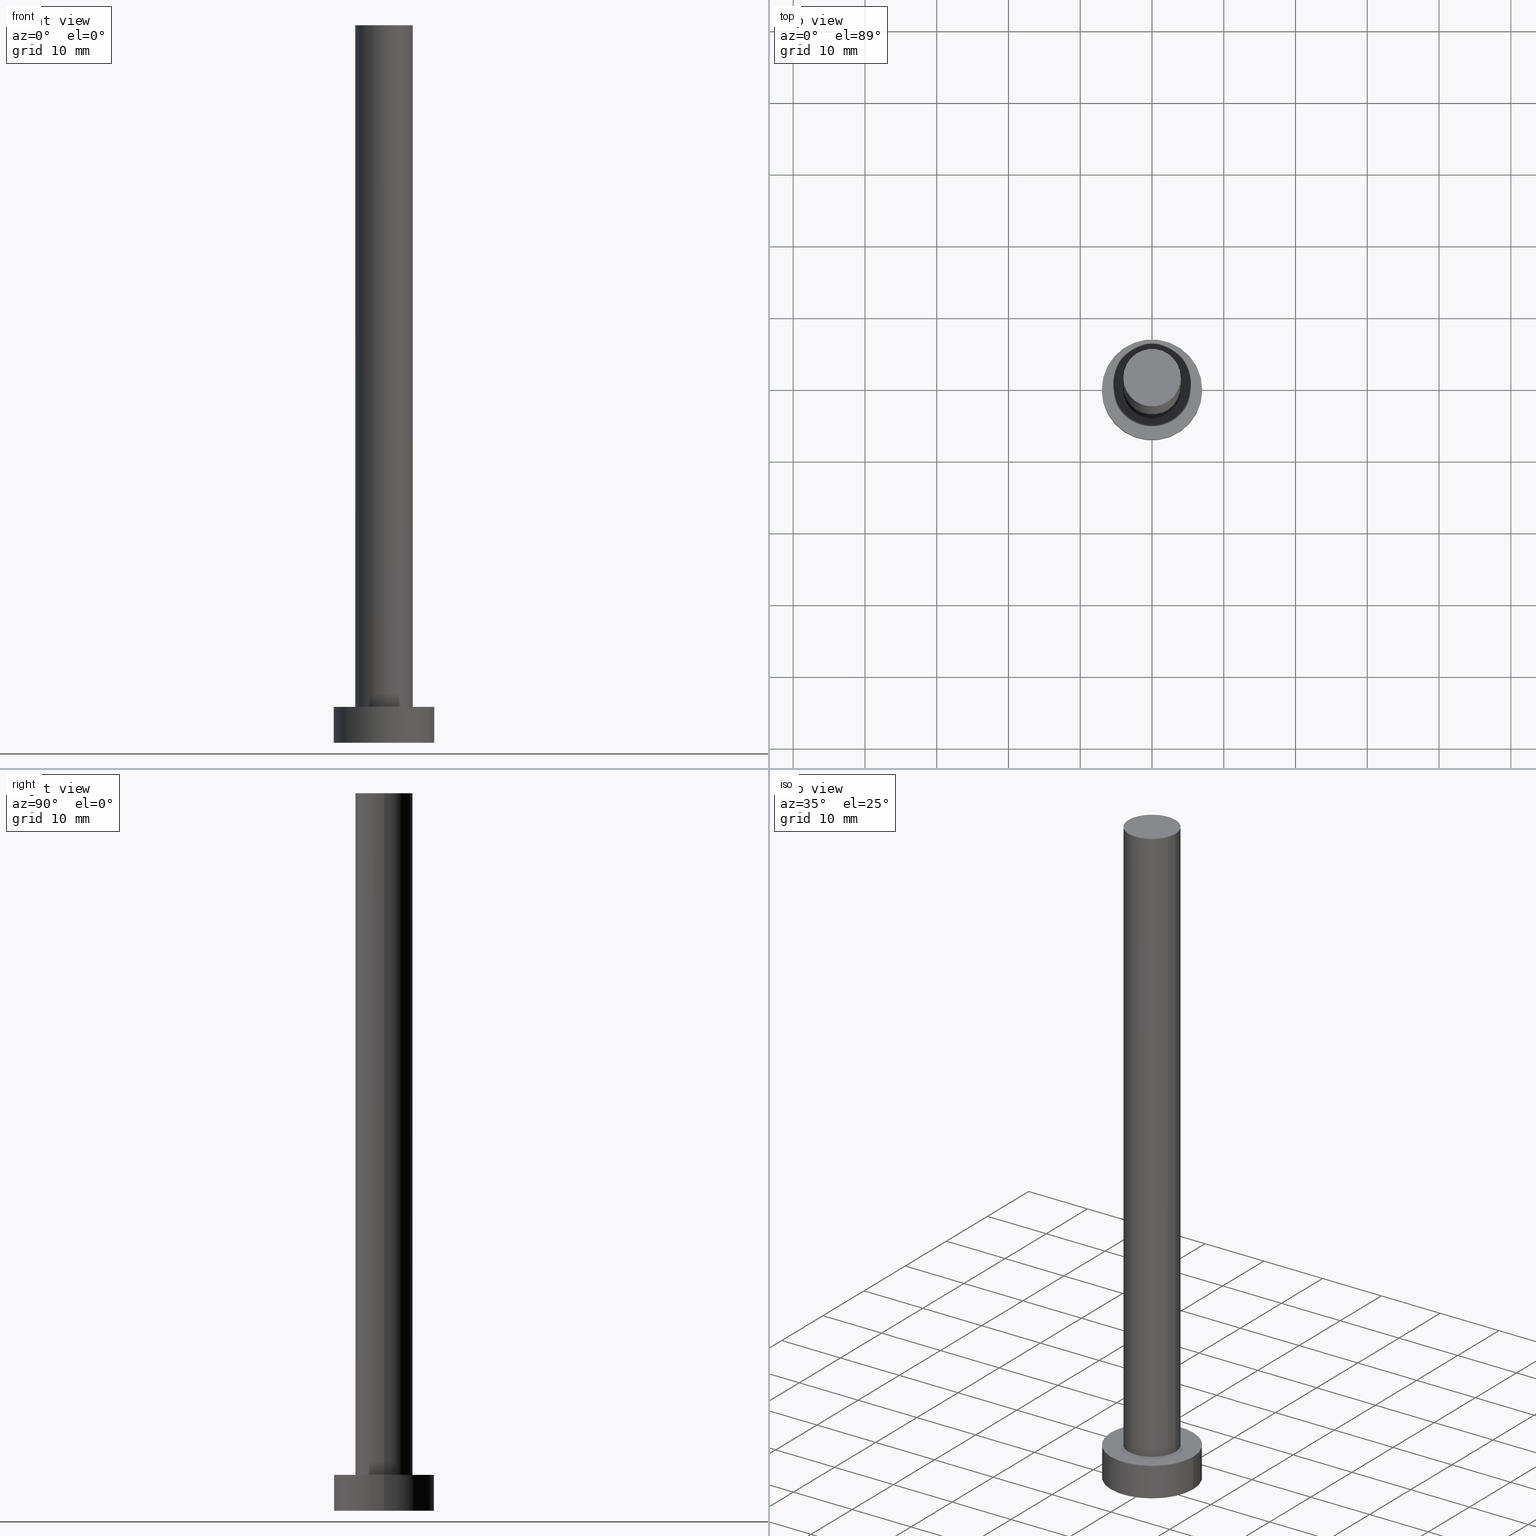
[diagram: canonical four-view strip — front | top / right | iso, engineering-drawing reading convention]
A machine part, canonical four-view strip (front | top / right | iso — engineering-drawing reading convention). The complete STEP part file that produces these views, byte-faithful:
ISO-10303-21;
HEADER;
FILE_DESCRIPTION (( 'STEP AP203' ),
    '1' );
FILE_NAME ('d6dd.STEP',
    '2023-02-12T11:55:29',
    ( '' ),
    ( '' ),
    'SwSTEP 2.0',
    'SolidWorks 2019',
    '' );
FILE_SCHEMA (( 'CONFIG_CONTROL_DESIGN' ));
ENDSEC;

DATA;
#1 = EDGE_LOOP ( 'NONE', ( #211, #94, #47, #19 ) ) ;
#2 = DIRECTION ( 'NONE',  ( -0.000000000000000000, -0.000000000000000000, -1.000000000000000000 ) ) ;
#3 = DATE_TIME_ROLE ( 'classification_date' ) ;
#4 = PERSON_AND_ORGANIZATION_ROLE ( 'design_supplier' ) ;
#5 = PERSON_AND_ORGANIZATION ( #181, #84 ) ;
#6 = AXIS2_PLACEMENT_3D ( 'NONE', #46, #82, #166 ) ;
#7 = AXIS2_PLACEMENT_3D ( 'NONE', #80, #161, #242 ) ;
#8 = FACE_OUTER_BOUND ( 'NONE', #1, .T. ) ;
#9 = AXIS2_PLACEMENT_3D ( 'NONE', #120, #201, #250 ) ;
#10 = CC_DESIGN_APPROVAL ( #217, ( #118 ) ) ;
#11 = PLANE ( 'NONE',  #225 ) ;
#12 = CYLINDRICAL_SURFACE ( 'NONE', #6, 7.000000000000000000 ) ;
#13 = CYLINDRICAL_SURFACE ( 'NONE', #208, 4.000000000000000000 ) ;
#14 = ADVANCED_FACE ( 'NONE', ( #86 ), #214, .T. ) ;
#15 = APPROVAL_PERSON_ORGANIZATION ( #49, #87, #133 ) ;
#16 = VERTEX_POINT ( 'NONE', #173 ) ;
#17 = DIRECTION ( 'NONE',  ( 0.000000000000000000, 0.000000000000000000, 1.000000000000000000 ) ) ;
#18 = AXIS2_PLACEMENT_3D ( 'NONE', #231, #212, #252 ) ;
#19 = ORIENTED_EDGE ( 'NONE', *, *, #234, .F. ) ;
#20 = SHAPE_DEFINITION_REPRESENTATION ( #74, #42 ) ;
#21 = CARTESIAN_POINT ( 'NONE',  ( 0.000000000000000000, 0.000000000000000000, 5.000000000000000000 ) ) ;
#22 = CALENDAR_DATE ( 2023, 12, 2 ) ;
#23 = VECTOR ( 'NONE', #194, 1000.000000000000000 ) ;
#24 = CIRCLE ( 'NONE', #157, 7.000000000000000000 ) ;
#25 = DIRECTION ( 'NONE',  ( 1.000000000000000000, 0.000000000000000000, 0.000000000000000000 ) ) ;
#26 = CC_DESIGN_PERSON_AND_ORGANIZATION_ASSIGNMENT ( #5, #60, ( #118 ) ) ;
#27 = DIRECTION ( 'NONE',  ( -1.000000000000000000, 0.000000000000000000, 0.000000000000000000 ) ) ;
#28 = ADVANCED_FACE ( 'NONE', ( #255 ), #238, .T. ) ;
#29 = APPROVAL_ROLE ( '' ) ;
#30 = PLANE ( 'NONE',  #116 ) ;
#31 = DIRECTION ( 'NONE',  ( 0.000000000000000000, 0.000000000000000000, 1.000000000000000000 ) ) ;
#32 = DATE_TIME_ROLE ( 'creation_date' ) ;
#33 = ORIENTED_EDGE ( 'NONE', *, *, #197, .F. ) ;
#34 = CC_DESIGN_PERSON_AND_ORGANIZATION_ASSIGNMENT ( #178, #183, ( #40 ) ) ;
#35 = CIRCLE ( 'NONE', #182, 4.000000000000000000 ) ;
#36 = DIRECTION ( 'NONE',  ( 1.000000000000000000, 0.000000000000000000, 0.000000000000000000 ) ) ;
#37 = ORIENTED_EDGE ( 'NONE', *, *, #130, .F. ) ;
#38 = EDGE_CURVE ( 'NONE', #16, #154, #151, .T. ) ;
#39 = PERSON_AND_ORGANIZATION ( #181, #84 ) ;
#40 = PRODUCT_DEFINITION_FORMATION_WITH_SPECIFIED_SOURCE ( 'LIBOVOLN�', '', #245, .NOT_KNOWN. ) ;
#41 = ADVANCED_FACE ( 'NONE', ( #50 ), #30, .T. ) ;
#42 = ADVANCED_BREP_SHAPE_REPRESENTATION ( 'd6dd', ( #137, #18 ), #57 ) ;
#43 = CARTESIAN_POINT ( 'NONE',  ( 7.000000000000000000, 8.572527594031473190E-16, 5.000000000000000000 ) ) ;
#44 = CARTESIAN_POINT ( 'NONE',  ( 0.000000000000000000, 0.000000000000000000, 100.0000000000000000 ) ) ;
#45 = ORIENTED_EDGE ( 'NONE', *, *, #197, .T. ) ;
#46 = CARTESIAN_POINT ( 'NONE',  ( 0.000000000000000000, 0.000000000000000000, 5.000000000000000000 ) ) ;
#47 = ORIENTED_EDGE ( 'NONE', *, *, #85, .T. ) ;
#48 = APPROVAL_STATUS ( 'not_yet_approved' ) ;
#49 = PERSON_AND_ORGANIZATION ( #181, #84 ) ;
#50 = FACE_OUTER_BOUND ( 'NONE', #52, .T. ) ;
#51 = PERSON_AND_ORGANIZATION ( #181, #84 ) ;
#52 = EDGE_LOOP ( 'NONE', ( #132, #174 ) ) ;
#53 = MECHANICAL_CONTEXT ( 'NONE', #243, 'mechanical' ) ;
#54 = ADVANCED_FACE ( 'NONE', ( #142 ), #199, .F. ) ;
#55 = APPLICATION_PROTOCOL_DEFINITION ( 'international standard', 'config_control_design', 1994, #243 ) ;
#56 = DIRECTION ( 'NONE',  ( -0.000000000000000000, -0.000000000000000000, -1.000000000000000000 ) ) ;
#57 =( GEOMETRIC_REPRESENTATION_CONTEXT ( 3 ) GLOBAL_UNCERTAINTY_ASSIGNED_CONTEXT ( ( #230 ) ) GLOBAL_UNIT_ASSIGNED_CONTEXT ( ( #236, #71, #254 ) ) REPRESENTATION_CONTEXT ( 'NONE', 'WORKASPACE' ) );
#58 = APPROVAL_STATUS ( 'not_yet_approved' ) ;
#59 = DATE_AND_TIME ( #22, #200 ) ;
#60 = PERSON_AND_ORGANIZATION_ROLE ( 'classification_officer' ) ;
#61 = CARTESIAN_POINT ( 'NONE',  ( 0.000000000000000000, 0.000000000000000000, 5.000000000000000000 ) ) ;
#62 = APPROVAL_DATE_TIME ( #107, #206 ) ;
#63 = CC_DESIGN_DATE_AND_TIME_ASSIGNMENT ( #163, #3, ( #118 ) ) ;
#64 = VECTOR ( 'NONE', #190, 1000.000000000000000 ) ;
#65 = CARTESIAN_POINT ( 'NONE',  ( 4.000000000000000000, 4.898587196589412829E-16, 100.0000000000000000 ) ) ;
#66 = LOCAL_TIME ( 12, 55, 29.00000000000000000, #111 ) ;
#67 = CARTESIAN_POINT ( 'NONE',  ( 0.000000000000000000, 0.000000000000000000, 5.000000000000000000 ) ) ;
#68 = CARTESIAN_POINT ( 'NONE',  ( 4.000000000000000000, 4.898587196589412829E-16, 100.0000000000000000 ) ) ;
#69 = EDGE_CURVE ( 'NONE', #198, #204, #102, .T. ) ;
#70 = CARTESIAN_POINT ( 'NONE',  ( 4.000000000000000000, 4.898587196589412829E-16, 5.000000000000000000 ) ) ;
#71 =( NAMED_UNIT ( * ) PLANE_ANGLE_UNIT ( ) SI_UNIT ( $, .RADIAN. ) );
#72 = PERSON_AND_ORGANIZATION_ROLE ( 'design_owner' ) ;
#73 = CARTESIAN_POINT ( 'NONE',  ( 0.000000000000000000, 0.000000000000000000, 100.0000000000000000 ) ) ;
#74 = PRODUCT_DEFINITION_SHAPE ( 'NONE', 'NONE',  #140 ) ;
#75 = ORIENTED_EDGE ( 'NONE', *, *, #115, .F. ) ;
#76 = CALENDAR_DATE ( 2023, 12, 2 ) ;
#77 = ORIENTED_EDGE ( 'NONE', *, *, #85, .F. ) ;
#78 = ORIENTED_EDGE ( 'NONE', *, *, #220, .F. ) ;
#79 = CALENDAR_DATE ( 2023, 12, 2 ) ;
#80 = CARTESIAN_POINT ( 'NONE',  ( 0.000000000000000000, 0.000000000000000000, 0.000000000000000000 ) ) ;
#81 = DIRECTION ( 'NONE',  ( 0.000000000000000000, 0.000000000000000000, 1.000000000000000000 ) ) ;
#82 = DIRECTION ( 'NONE',  ( -0.000000000000000000, -0.000000000000000000, -1.000000000000000000 ) ) ;
#83 = EDGE_LOOP ( 'NONE', ( #37, #188, #104, #150 ) ) ;
#84 = ORGANIZATION ( 'NEUR�EN�', 'NEUR�EN�', '' ) ;
#85 = EDGE_CURVE ( 'NONE', #204, #198, #89, .T. ) ;
#86 = FACE_OUTER_BOUND ( 'NONE', #91, .T. ) ;
#87 = APPROVAL ( #48, 'NEUR�EN�' ) ;
#88 = AXIS2_PLACEMENT_3D ( 'NONE', #141, #218, #180 ) ;
#89 = CIRCLE ( 'NONE', #88, 4.000000000000000000 ) ;
#90 = EDGE_LOOP ( 'NONE', ( #172, #222 ) ) ;
#91 = EDGE_LOOP ( 'NONE', ( #253, #229, #168, #126 ) ) ;
#92 = APPLICATION_CONTEXT ( 'configuration controlled 3d designs of mechanical parts and assemblies' ) ;
#93 = CALENDAR_DATE ( 2023, 12, 2 ) ;
#94 = ORIENTED_EDGE ( 'NONE', *, *, #117, .T. ) ;
#95 = VECTOR ( 'NONE', #248, 1000.000000000000000 ) ;
#96 = DIRECTION ( 'NONE',  ( -1.000000000000000000, 0.000000000000000000, 0.000000000000000000 ) ) ;
#97 = DIRECTION ( 'NONE',  ( 0.000000000000000000, 0.000000000000000000, 1.000000000000000000 ) ) ;
#98 = SECURITY_CLASSIFICATION_LEVEL ( 'unclassified' ) ;
#99 = AXIS2_PLACEMENT_3D ( 'NONE', #226, #127, #167 ) ;
#100 = EDGE_CURVE ( 'NONE', #170, #112, #124, .T. ) ;
#101 = DIRECTION ( 'NONE',  ( 0.000000000000000000, 0.000000000000000000, 1.000000000000000000 ) ) ;
#102 = CIRCLE ( 'NONE', #203, 4.000000000000000000 ) ;
#103 = CARTESIAN_POINT ( 'NONE',  ( -7.000000000000000000, 0.000000000000000000, 0.000000000000000000 ) ) ;
#104 = ORIENTED_EDGE ( 'NONE', *, *, #38, .T. ) ;
#105 = CC_DESIGN_DATE_AND_TIME_ASSIGNMENT ( #209, #32, ( #140 ) ) ;
#106 = CARTESIAN_POINT ( 'NONE',  ( 7.000000000000000000, 8.572527594031473190E-16, 5.000000000000000000 ) ) ;
#107 = DATE_AND_TIME ( #128, #66 ) ;
#108 = CARTESIAN_POINT ( 'NONE',  ( 0.000000000000000000, 0.000000000000000000, 100.0000000000000000 ) ) ;
#109 = DATE_AND_TIME ( #76, #239 ) ;
#110 = DIRECTION ( 'NONE',  ( 1.000000000000000000, 0.000000000000000000, -0.000000000000000000 ) ) ;
#111 = COORDINATED_UNIVERSAL_TIME_OFFSET ( 1, 0, .AHEAD. ) ;
#112 = VERTEX_POINT ( 'NONE', #68 ) ;
#113 = CC_DESIGN_APPROVAL ( #206, ( #40 ) ) ;
#114 = CARTESIAN_POINT ( 'NONE',  ( 7.000000000000000000, 8.572527594031473190E-16, 0.000000000000000000 ) ) ;
#115 = EDGE_CURVE ( 'NONE', #122, #16, #24, .T. ) ;
#116 = AXIS2_PLACEMENT_3D ( 'NONE', #108, #31, #110 ) ;
#117 = EDGE_CURVE ( 'NONE', #112, #204, #144, .T. ) ;
#118 = SECURITY_CLASSIFICATION ( '', '', #98 ) ;
#119 = CC_DESIGN_PERSON_AND_ORGANIZATION_ASSIGNMENT ( #138, #4, ( #40 ) ) ;
#120 = CARTESIAN_POINT ( 'NONE',  ( 0.000000000000000000, 0.000000000000000000, 0.000000000000000000 ) ) ;
#121 = CARTESIAN_POINT ( 'NONE',  ( -4.000000000000000000, 0.000000000000000000, 100.0000000000000000 ) ) ;
#122 = VERTEX_POINT ( 'NONE', #106 ) ;
#123 = CARTESIAN_POINT ( 'NONE',  ( 0.000000000000000000, 0.000000000000000000, 5.000000000000000000 ) ) ;
#124 = CIRCLE ( 'NONE', #135, 4.000000000000000000 ) ;
#125 = AXIS2_PLACEMENT_3D ( 'NONE', #123, #202, #25 ) ;
#126 = ORIENTED_EDGE ( 'NONE', *, *, #69, .T. ) ;
#127 = DIRECTION ( 'NONE',  ( 0.000000000000000000, 0.000000000000000000, 1.000000000000000000 ) ) ;
#128 = CALENDAR_DATE ( 2023, 12, 2 ) ;
#129 = APPROVAL_DATE_TIME ( #109, #87 ) ;
#130 = EDGE_CURVE ( 'NONE', #122, #227, #221, .T. ) ;
#131 = CIRCLE ( 'NONE', #99, 7.000000000000000000 ) ;
#132 = ORIENTED_EDGE ( 'NONE', *, *, #100, .T. ) ;
#133 = APPROVAL_ROLE ( '' ) ;
#134 = AXIS2_PLACEMENT_3D ( 'NONE', #21, #152, #96 ) ;
#135 = AXIS2_PLACEMENT_3D ( 'NONE', #184, #81, #247 ) ;
#136 = APPROVAL_PERSON_ORGANIZATION ( #237, #206, #29 ) ;
#137 = MANIFOLD_SOLID_BREP ( 'P�idat vysunut�m3', #232 ) ;
#138 = PERSON_AND_ORGANIZATION ( #181, #84 ) ;
#139 = ORIENTED_EDGE ( 'NONE', *, *, #38, .F. ) ;
#140 = PRODUCT_DEFINITION ( 'NEZN�M�', '', #40, #185 ) ;
#141 = CARTESIAN_POINT ( 'NONE',  ( 0.000000000000000000, 0.000000000000000000, 5.000000000000000000 ) ) ;
#142 = FACE_OUTER_BOUND ( 'NONE', #240, .T. ) ;
#143 = DIRECTION ( 'NONE',  ( 1.000000000000000000, 0.000000000000000000, 0.000000000000000000 ) ) ;
#144 = LINE ( 'NONE', #65, #95 ) ;
#145 = CARTESIAN_POINT ( 'NONE',  ( 0.000000000000000000, 0.000000000000000000, 5.000000000000000000 ) ) ;
#146 = EDGE_LOOP ( 'NONE', ( #193, #77 ) ) ;
#147 = CIRCLE ( 'NONE', #9, 7.000000000000000000 ) ;
#148 = DIRECTION ( 'NONE',  ( 0.000000000000000000, 0.000000000000000000, 1.000000000000000000 ) ) ;
#149 = LOCAL_TIME ( 12, 55, 29.00000000000000000, #153 ) ;
#150 = ORIENTED_EDGE ( 'NONE', *, *, #220, .T. ) ;
#151 = LINE ( 'NONE', #175, #155 ) ;
#152 = DIRECTION ( 'NONE',  ( -0.000000000000000000, -0.000000000000000000, -1.000000000000000000 ) ) ;
#153 = COORDINATED_UNIVERSAL_TIME_OFFSET ( 1, 0, .AHEAD. ) ;
#154 = VERTEX_POINT ( 'NONE', #103 ) ;
#155 = VECTOR ( 'NONE', #2, 1000.000000000000000 ) ;
#156 = APPLICATION_PROTOCOL_DEFINITION ( 'international standard', 'config_control_design', 1994, #92 ) ;
#157 = AXIS2_PLACEMENT_3D ( 'NONE', #67, #148, #143 ) ;
#158 = ORIENTED_EDGE ( 'NONE', *, *, #130, .T. ) ;
#159 = EDGE_CURVE ( 'NONE', #16, #122, #191, .T. ) ;
#160 = APPROVAL_ROLE ( '' ) ;
#161 = DIRECTION ( 'NONE',  ( 0.000000000000000000, 0.000000000000000000, 1.000000000000000000 ) ) ;
#162 = DIRECTION ( 'NONE',  ( 1.000000000000000000, 0.000000000000000000, 0.000000000000000000 ) ) ;
#163 = DATE_AND_TIME ( #79, #177 ) ;
#164 = PRODUCT_RELATED_PRODUCT_CATEGORY ( 'detail', '', ( #245 ) ) ;
#165 = CC_DESIGN_PERSON_AND_ORGANIZATION_ASSIGNMENT ( #192, #215, ( #140 ) ) ;
#166 = DIRECTION ( 'NONE',  ( -1.000000000000000000, 0.000000000000000000, 0.000000000000000000 ) ) ;
#167 = DIRECTION ( 'NONE',  ( 1.000000000000000000, 0.000000000000000000, 0.000000000000000000 ) ) ;
#168 = ORIENTED_EDGE ( 'NONE', *, *, #234, .T. ) ;
#169 = CARTESIAN_POINT ( 'NONE',  ( 0.000000000000000000, 0.000000000000000000, 100.0000000000000000 ) ) ;
#170 = VERTEX_POINT ( 'NONE', #121 ) ;
#171 = ADVANCED_FACE ( 'NONE', ( #228, #187 ), #11, .T. ) ;
#172 = ORIENTED_EDGE ( 'NONE', *, *, #159, .T. ) ;
#173 = CARTESIAN_POINT ( 'NONE',  ( -7.000000000000000000, 0.000000000000000000, 5.000000000000000000 ) ) ;
#174 = ORIENTED_EDGE ( 'NONE', *, *, #246, .T. ) ;
#175 = CARTESIAN_POINT ( 'NONE',  ( -7.000000000000000000, 0.000000000000000000, 5.000000000000000000 ) ) ;
#176 = ADVANCED_FACE ( 'NONE', ( #8 ), #13, .T. ) ;
#177 = LOCAL_TIME ( 12, 55, 29.00000000000000000, #179 ) ;
#178 = PERSON_AND_ORGANIZATION ( #181, #84 ) ;
#179 = COORDINATED_UNIVERSAL_TIME_OFFSET ( 1, 0, .AHEAD. ) ;
#180 = DIRECTION ( 'NONE',  ( 1.000000000000000000, 0.000000000000000000, 0.000000000000000000 ) ) ;
#181 = PERSON ( 'NEUR�EN�', 'NEUR�EN�', 'NEUR�EN�', ('NEUR�EN�'), ('NEUR�EN�'), ('NEUR�EN�') ) ;
#182 = AXIS2_PLACEMENT_3D ( 'NONE', #169, #17, #36 ) ;
#183 = PERSON_AND_ORGANIZATION_ROLE ( 'creator' ) ;
#184 = CARTESIAN_POINT ( 'NONE',  ( 0.000000000000000000, 0.000000000000000000, 100.0000000000000000 ) ) ;
#185 = DESIGN_CONTEXT ( 'detailed design', #92, 'design' ) ;
#186 = ADVANCED_FACE ( 'NONE', ( #189 ), #12, .T. ) ;
#187 = FACE_OUTER_BOUND ( 'NONE', #90, .T. ) ;
#188 = ORIENTED_EDGE ( 'NONE', *, *, #159, .F. ) ;
#189 = FACE_OUTER_BOUND ( 'NONE', #83, .T. ) ;
#190 = DIRECTION ( 'NONE',  ( -0.000000000000000000, -0.000000000000000000, -1.000000000000000000 ) ) ;
#191 = CIRCLE ( 'NONE', #125, 7.000000000000000000 ) ;
#192 = PERSON_AND_ORGANIZATION ( #181, #84 ) ;
#193 = ORIENTED_EDGE ( 'NONE', *, *, #69, .F. ) ;
#194 = DIRECTION ( 'NONE',  ( -0.000000000000000000, -0.000000000000000000, -1.000000000000000000 ) ) ;
#195 = COORDINATED_UNIVERSAL_TIME_OFFSET ( 1, 0, .AHEAD. ) ;
#196 = EDGE_LOOP ( 'NONE', ( #75, #158, #45, #139 ) ) ;
#197 = EDGE_CURVE ( 'NONE', #227, #154, #131, .T. ) ;
#198 = VERTEX_POINT ( 'NONE', #249 ) ;
#199 = PLANE ( 'NONE',  #7 ) ;
#200 = LOCAL_TIME ( 12, 55, 29.00000000000000000, #241 ) ;
#201 = DIRECTION ( 'NONE',  ( 0.000000000000000000, 0.000000000000000000, 1.000000000000000000 ) ) ;
#202 = DIRECTION ( 'NONE',  ( 0.000000000000000000, 0.000000000000000000, 1.000000000000000000 ) ) ;
#203 = AXIS2_PLACEMENT_3D ( 'NONE', #61, #97, #162 ) ;
#204 = VERTEX_POINT ( 'NONE', #70 ) ;
#205 = DIRECTION ( 'NONE',  ( -0.000000000000000000, -0.000000000000000000, -1.000000000000000000 ) ) ;
#206 = APPROVAL ( #207, 'NEUR�EN�' ) ;
#207 = APPROVAL_STATUS ( 'not_yet_approved' ) ;
#208 = AXIS2_PLACEMENT_3D ( 'NONE', #44, #205, #27 ) ;
#209 = DATE_AND_TIME ( #93, #149 ) ;
#210 = APPROVAL_PERSON_ORGANIZATION ( #39, #217, #160 ) ;
#211 = ORIENTED_EDGE ( 'NONE', *, *, #246, .F. ) ;
#212 = DIRECTION ( 'NONE',  ( 0.000000000000000000, 0.000000000000000000, 1.000000000000000000 ) ) ;
#213 = CC_DESIGN_PERSON_AND_ORGANIZATION_ASSIGNMENT ( #51, #72, ( #245 ) ) ;
#214 = CYLINDRICAL_SURFACE ( 'NONE', #224, 4.000000000000000000 ) ;
#215 = PERSON_AND_ORGANIZATION_ROLE ( 'creator' ) ;
#216 = LINE ( 'NONE', #233, #23 ) ;
#217 = APPROVAL ( #58, 'NEUR�EN�' ) ;
#218 = DIRECTION ( 'NONE',  ( 0.000000000000000000, 0.000000000000000000, 1.000000000000000000 ) ) ;
#219 = CC_DESIGN_SECURITY_CLASSIFICATION ( #118, ( #40 ) ) ;
#220 = EDGE_CURVE ( 'NONE', #154, #227, #147, .T. ) ;
#221 = LINE ( 'NONE', #43, #64 ) ;
#222 = ORIENTED_EDGE ( 'NONE', *, *, #115, .T. ) ;
#223 = DIRECTION ( 'NONE',  ( 1.000000000000000000, 0.000000000000000000, -0.000000000000000000 ) ) ;
#224 = AXIS2_PLACEMENT_3D ( 'NONE', #73, #56, #251 ) ;
#225 = AXIS2_PLACEMENT_3D ( 'NONE', #145, #101, #223 ) ;
#226 = CARTESIAN_POINT ( 'NONE',  ( 0.000000000000000000, 0.000000000000000000, 0.000000000000000000 ) ) ;
#227 = VERTEX_POINT ( 'NONE', #114 ) ;
#228 = FACE_BOUND ( 'NONE', #146, .T. ) ;
#229 = ORIENTED_EDGE ( 'NONE', *, *, #100, .F. ) ;
#230 = UNCERTAINTY_MEASURE_WITH_UNIT (LENGTH_MEASURE( 1.000000000000000082E-05 ), #236, 'distance_accuracy_value', 'NONE');
#231 = CARTESIAN_POINT ( 'NONE',  ( 0.000000000000000000, 0.000000000000000000, 0.000000000000000000 ) ) ;
#232 = CLOSED_SHELL ( 'NONE', ( #176, #28, #186, #171, #54, #14, #41 ) ) ;
#233 = CARTESIAN_POINT ( 'NONE',  ( -4.000000000000000000, 0.000000000000000000, 100.0000000000000000 ) ) ;
#234 = EDGE_CURVE ( 'NONE', #170, #198, #216, .T. ) ;
#235 = CC_DESIGN_APPROVAL ( #87, ( #140 ) ) ;
#236 =( LENGTH_UNIT ( ) NAMED_UNIT ( * ) SI_UNIT ( .MILLI., .METRE. ) );
#237 = PERSON_AND_ORGANIZATION ( #181, #84 ) ;
#238 = CYLINDRICAL_SURFACE ( 'NONE', #134, 7.000000000000000000 ) ;
#239 = LOCAL_TIME ( 12, 55, 29.00000000000000000, #195 ) ;
#240 = EDGE_LOOP ( 'NONE', ( #78, #33 ) ) ;
#241 = COORDINATED_UNIVERSAL_TIME_OFFSET ( 1, 0, .AHEAD. ) ;
#242 = DIRECTION ( 'NONE',  ( 1.000000000000000000, 0.000000000000000000, -0.000000000000000000 ) ) ;
#243 = APPLICATION_CONTEXT ( 'configuration controlled 3d designs of mechanical parts and assemblies' ) ;
#244 = APPROVAL_DATE_TIME ( #59, #217 ) ;
#245 = PRODUCT ( 'd6dd', 'd6dd', '', ( #53 ) ) ;
#246 = EDGE_CURVE ( 'NONE', #112, #170, #35, .T. ) ;
#247 = DIRECTION ( 'NONE',  ( 1.000000000000000000, 0.000000000000000000, 0.000000000000000000 ) ) ;
#248 = DIRECTION ( 'NONE',  ( -0.000000000000000000, -0.000000000000000000, -1.000000000000000000 ) ) ;
#249 = CARTESIAN_POINT ( 'NONE',  ( -4.000000000000000000, 0.000000000000000000, 5.000000000000000000 ) ) ;
#250 = DIRECTION ( 'NONE',  ( 1.000000000000000000, 0.000000000000000000, 0.000000000000000000 ) ) ;
#251 = DIRECTION ( 'NONE',  ( -1.000000000000000000, 0.000000000000000000, 0.000000000000000000 ) ) ;
#252 = DIRECTION ( 'NONE',  ( 1.000000000000000000, 0.000000000000000000, 0.000000000000000000 ) ) ;
#253 = ORIENTED_EDGE ( 'NONE', *, *, #117, .F. ) ;
#254 =( NAMED_UNIT ( * ) SI_UNIT ( $, .STERADIAN. ) SOLID_ANGLE_UNIT ( ) );
#255 = FACE_OUTER_BOUND ( 'NONE', #196, .T. ) ;
ENDSEC;
END-ISO-10303-21;
